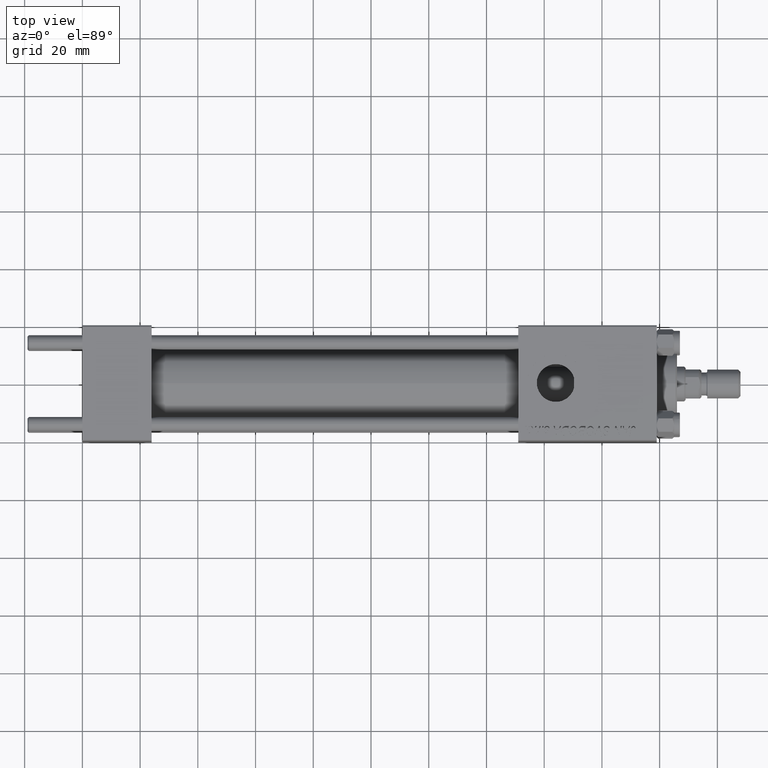
[diagram: clean part render]
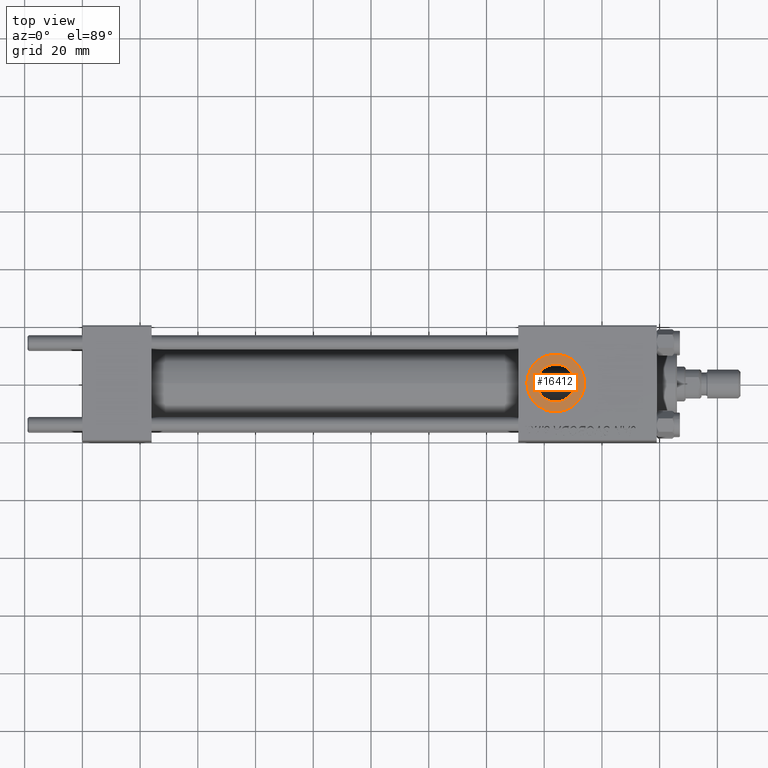
[diagram: same view with one face highlighted and labeled with its STEP entity id]
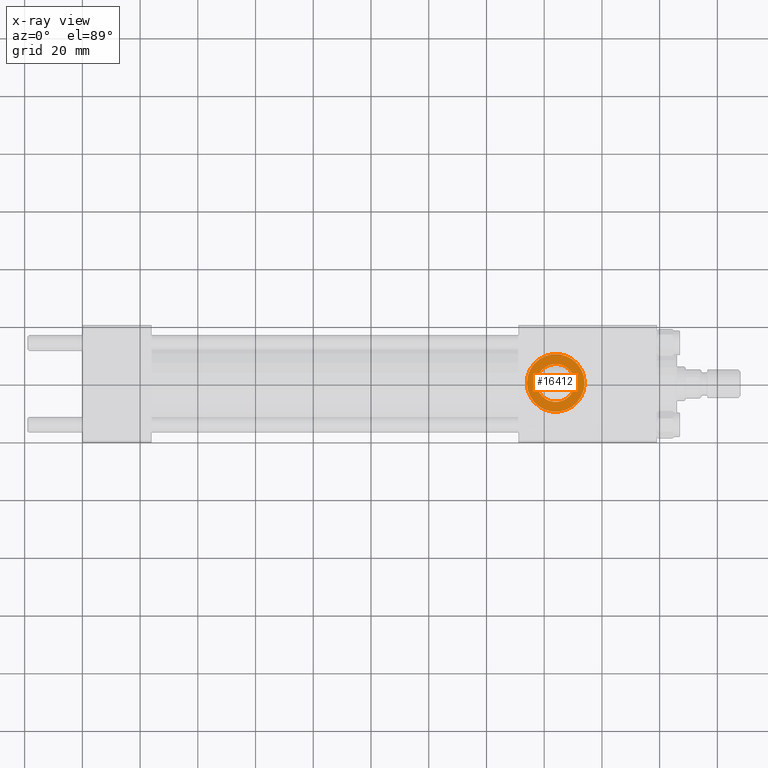
[diagram: x-ray of the same camera — body ghosted, the highlighted face saturated]
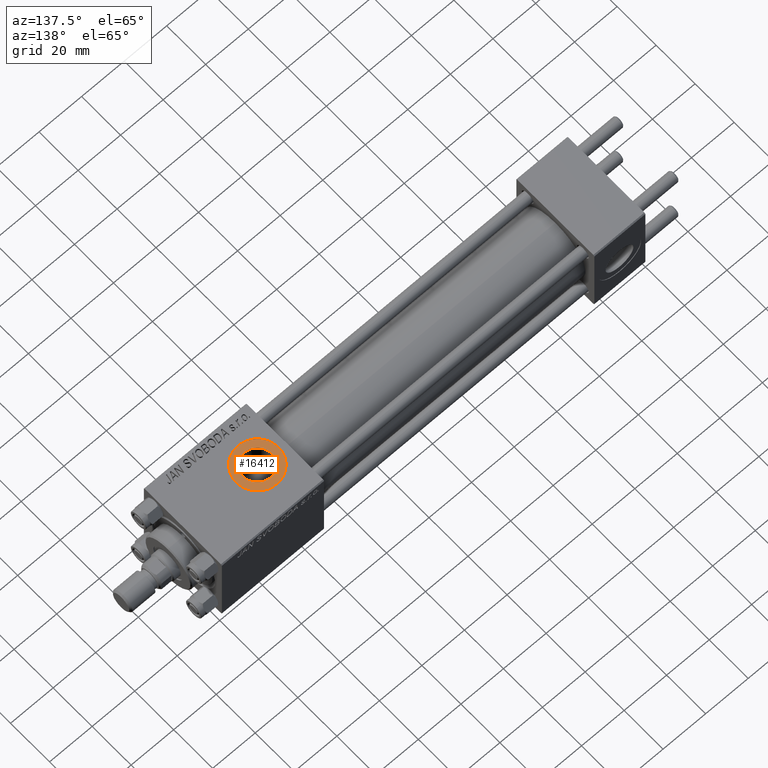
[diagram: same view with one face highlighted and labeled with its STEP entity id]
A machine part, top view. The second image highlights one B-rep face of the part: STEP entity #16412.
The next image is the same camera in x-ray: the body ghosted, the highlighted face saturated — about 0% of this face is hidden behind the body in this view.
A second angle (auxiliary view) of the same face is appended — the face is thin or edge-on in the first view.
In plain terms, the highlighted planar face has unit normal (0, 0, 1).
Its self-contained STEP definition (entity closure, byte-faithful):
#129 = VERTEX_POINT ( 'NONE', #6221 ) ;
#1282 = DIRECTION ( 'NONE',  ( 1.000000000000000000, 0.000000000000000000, 0.000000000000000000 ) ) ;
#1818 = DIRECTION ( 'NONE',  ( -0.000000000000000000, -0.000000000000000000, -1.000000000000000000 ) ) ;
#4311 = CARTESIAN_POINT ( 'NONE',  ( 164.0000000000000284, -1.734723475976806897E-15, 19.80000000000000071 ) ) ;
#4852 = DIRECTION ( 'NONE',  ( -0.000000000000000000, -0.000000000000000000, -1.000000000000000000 ) ) ;
#5597 = EDGE_CURVE ( 'NONE', #15733, #22075, #38265, .T. ) ;
#5703 = AXIS2_PLACEMENT_3D ( 'NONE', #23725, #4852, #1282 ) ;
#6221 = CARTESIAN_POINT ( 'NONE',  ( 154.0000000000000284, -5.100766768294525560E-16, 19.80000000000000071 ) ) ;
#11203 = FACE_OUTER_BOUND ( 'NONE', #35339, .T. ) ;
#11524 = EDGE_CURVE ( 'NONE', #11946, #129, #48098, .T. ) ;
#11646 = EDGE_CURVE ( 'NONE', #129, #11946, #35883, .T. ) ;
#11946 = VERTEX_POINT ( 'NONE', #37821 ) ;
#12441 = AXIS2_PLACEMENT_3D ( 'NONE', #4311, #39210, #19835 ) ;
#13302 = CARTESIAN_POINT ( 'NONE',  ( 164.0000000000000284, -1.734723475976806897E-15, 19.80000000000000071 ) ) ;
#15733 = VERTEX_POINT ( 'NONE', #29168 ) ;
#16412 = ADVANCED_FACE ( 'NONE', ( #42023, #11203 ), #48628, .T. ) ;
#17802 = EDGE_LOOP ( 'NONE', ( #26824, #37121 ) ) ;
#18132 = DIRECTION ( 'NONE',  ( 1.000000000000000000, 0.000000000000000000, 0.000000000000000000 ) ) ;
#19595 = AXIS2_PLACEMENT_3D ( 'NONE', #13302, #28337, #32919 ) ;
#19835 = DIRECTION ( 'NONE',  ( 1.000000000000000000, 0.000000000000000000, -0.000000000000000000 ) ) ;
#20900 = CARTESIAN_POINT ( 'NONE',  ( 164.0000000000000284, -1.734723475976806897E-15, 19.80000000000000071 ) ) ;
#22075 = VERTEX_POINT ( 'NONE', #46188 ) ;
#22202 = CARTESIAN_POINT ( 'NONE',  ( 164.0000000000000284, -1.734723475976806897E-15, 19.80000000000000071 ) ) ;
#22866 = EDGE_CURVE ( 'NONE', #22075, #15733, #25674, .T. ) ;
#23725 = CARTESIAN_POINT ( 'NONE',  ( 164.0000000000000284, -1.734723475976806897E-15, 19.80000000000000071 ) ) ;
#25674 = CIRCLE ( 'NONE', #39500, 6.580000000000002736 ) ;
#26284 = DIRECTION ( 'NONE',  ( 0.000000000000000000, 0.000000000000000000, 1.000000000000000000 ) ) ;
#26824 = ORIENTED_EDGE ( 'NONE', *, *, #5597, .T. ) ;
#28337 = DIRECTION ( 'NONE',  ( 0.000000000000000000, 0.000000000000000000, 1.000000000000000000 ) ) ;
#29168 = CARTESIAN_POINT ( 'NONE',  ( 157.4200000000000443, -1.734723475976806897E-15, 19.80000000000000071 ) ) ;
#31020 = AXIS2_PLACEMENT_3D ( 'NONE', #22202, #26284, #18132 ) ;
#32919 = DIRECTION ( 'NONE',  ( 1.000000000000000000, 0.000000000000000000, 0.000000000000000000 ) ) ;
#35339 = EDGE_LOOP ( 'NONE', ( #36108, #38041 ) ) ;
#35883 = CIRCLE ( 'NONE', #31020, 10.00000000000000888 ) ;
#36108 = ORIENTED_EDGE ( 'NONE', *, *, #11524, .T. ) ;
#37121 = ORIENTED_EDGE ( 'NONE', *, *, #22866, .T. ) ;
#37821 = CARTESIAN_POINT ( 'NONE',  ( 174.0000000000000568, -1.734723475976806897E-15, 19.80000000000000071 ) ) ;
#38041 = ORIENTED_EDGE ( 'NONE', *, *, #11646, .T. ) ;
#38265 = CIRCLE ( 'NONE', #5703, 6.580000000000002736 ) ;
#39210 = DIRECTION ( 'NONE',  ( 0.000000000000000000, 0.000000000000000000, 1.000000000000000000 ) ) ;
#39500 = AXIS2_PLACEMENT_3D ( 'NONE', #20900, #1818, #44103 ) ;
#42023 = FACE_BOUND ( 'NONE', #17802, .T. ) ;
#44103 = DIRECTION ( 'NONE',  ( 1.000000000000000000, 0.000000000000000000, 0.000000000000000000 ) ) ;
#46188 = CARTESIAN_POINT ( 'NONE',  ( 170.5800000000000409, -9.289058821378450943E-16, 19.80000000000000071 ) ) ;
#48098 = CIRCLE ( 'NONE', #19595, 10.00000000000000888 ) ;
#48628 = PLANE ( 'NONE',  #12441 ) ;